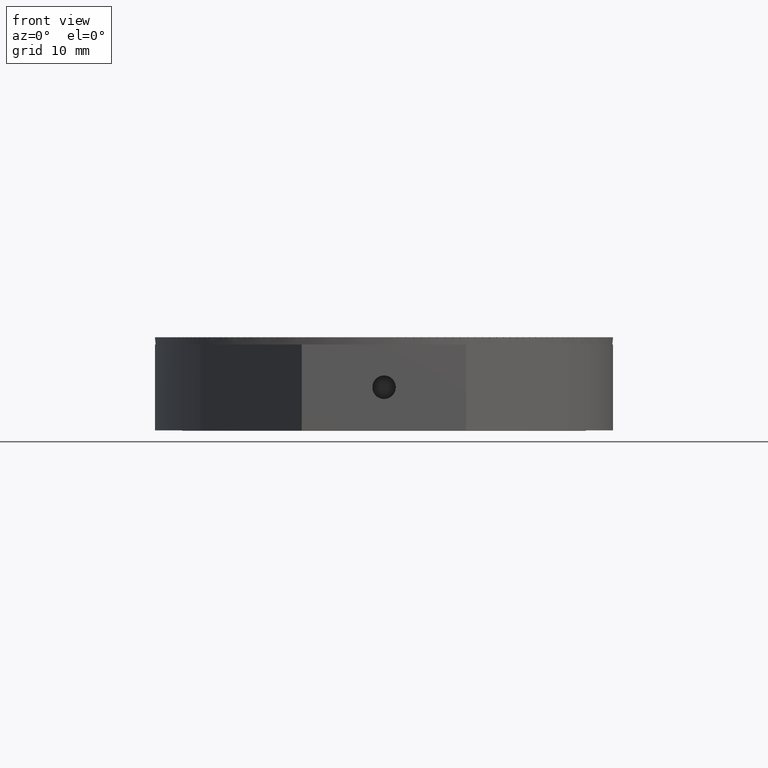
[diagram: clean part render]
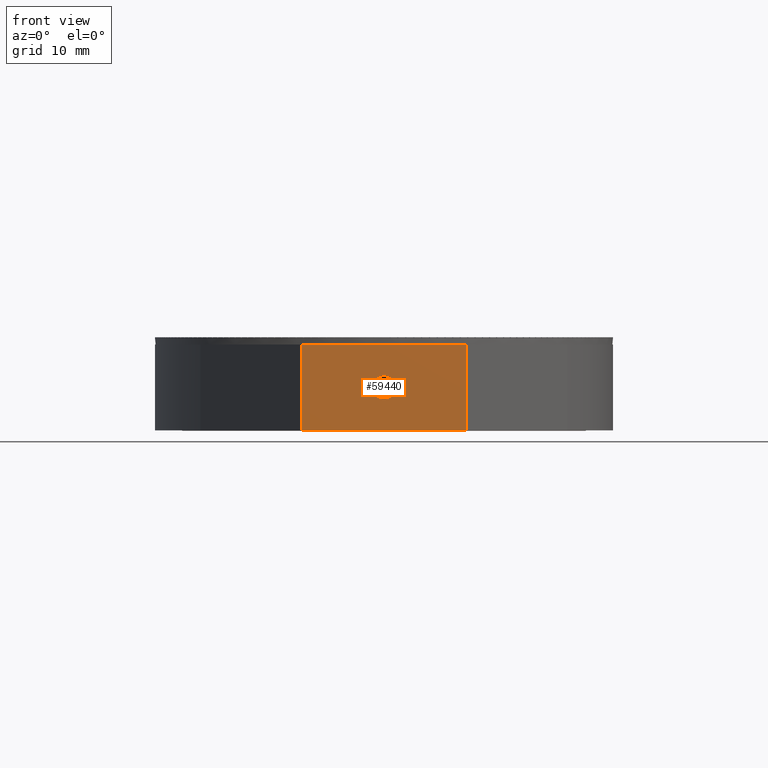
[diagram: same view with one face highlighted and labeled with its STEP entity id]
A machine part, front view. The second image highlights one B-rep face of the part: STEP entity #59440.
In plain terms, the highlighted planar face has unit normal (0, 1, -0).
Its self-contained STEP definition (entity closure, byte-faithful):
#1243 = AXIS2_PLACEMENT_3D ( 'NONE', #41484, #4223, #26434 ) ;
#3335 = ORIENTED_EDGE ( 'NONE', *, *, #45477, .F. ) ;
#4223 = DIRECTION ( 'NONE',  ( -0.000000000000000000, -0.000000000000000000, 1.000000000000000000 ) ) ;
#4951 = AXIS2_PLACEMENT_3D ( 'NONE', #42011, #50673, #16726 ) ;
#5352 = CIRCLE ( 'NONE', #1243, 1.649999999999989919 ) ;
#5496 = EDGE_CURVE ( 'NONE', #52175, #23324, #5352, .T. ) ;
#8869 = DIRECTION ( 'NONE',  ( 1.000000000000000000, 0.000000000000000000, 0.000000000000000000 ) ) ;
#10073 = EDGE_LOOP ( 'NONE', ( #32929, #32543, #10086, #21623 ) ) ;
#10086 = ORIENTED_EDGE ( 'NONE', *, *, #54423, .F. ) ;
#12300 = LINE ( 'NONE', #36968, #49907 ) ;
#12370 = CARTESIAN_POINT ( 'NONE',  ( -11.49999999999999467, 12.00000000000000000, 38.10000000000000142 ) ) ;
#14547 = CIRCLE ( 'NONE', #19680, 1.649999999999989919 ) ;
#16726 = DIRECTION ( 'NONE',  ( -1.000000000000000000, 0.000000000000000000, -0.000000000000000000 ) ) ;
#17356 = FACE_OUTER_BOUND ( 'NONE', #10073, .T. ) ;
#18507 = LINE ( 'NONE', #42847, #21087 ) ;
#19680 = AXIS2_PLACEMENT_3D ( 'NONE', #27220, #22115, #36852 ) ;
#21087 = VECTOR ( 'NONE', #31995, 1000.000000000000000 ) ;
#21623 = ORIENTED_EDGE ( 'NONE', *, *, #47508, .T. ) ;
#21640 = VERTEX_POINT ( 'NONE', #24162 ) ;
#22115 = DIRECTION ( 'NONE',  ( -0.000000000000000000, -0.000000000000000000, 1.000000000000000000 ) ) ;
#23285 = LINE ( 'NONE', #52736, #31771 ) ;
#23324 = VERTEX_POINT ( 'NONE', #44043 ) ;
#24162 = CARTESIAN_POINT ( 'NONE',  ( 11.50000000000000533, 12.00000000000000000, 38.10000000000000142 ) ) ;
#25090 = EDGE_CURVE ( 'NONE', #21640, #60846, #12300, .T. ) ;
#25762 = ORIENTED_EDGE ( 'NONE', *, *, #5496, .F. ) ;
#26326 = FACE_BOUND ( 'NONE', #54263, .T. ) ;
#26434 = DIRECTION ( 'NONE',  ( 1.000000000000000000, 0.000000000000000000, 0.000000000000000000 ) ) ;
#27220 = CARTESIAN_POINT ( 'NONE',  ( 0.000000000000000000, 6.000000000000000000, 38.10000000000000142 ) ) ;
#27356 = CARTESIAN_POINT ( 'NONE',  ( -11.49999999999999467, 12.00000000000000000, 38.10000000000000142 ) ) ;
#30163 = CARTESIAN_POINT ( 'NONE',  ( 11.50000000000000533, 0.000000000000000000, 38.10000000000000142 ) ) ;
#31771 = VECTOR ( 'NONE', #8869, 1000.000000000000000 ) ;
#31995 = DIRECTION ( 'NONE',  ( 1.000000000000000000, 0.000000000000000000, 0.000000000000000000 ) ) ;
#32543 = ORIENTED_EDGE ( 'NONE', *, *, #25090, .F. ) ;
#32929 = ORIENTED_EDGE ( 'NONE', *, *, #39924, .T. ) ;
#36790 = CARTESIAN_POINT ( 'NONE',  ( 1.649999999999989919, 6.000000000000000000, 38.10000000000000142 ) ) ;
#36852 = DIRECTION ( 'NONE',  ( 1.000000000000000000, 0.000000000000000000, 0.000000000000000000 ) ) ;
#36968 = CARTESIAN_POINT ( 'NONE',  ( 11.50000000000000533, 12.00000000000000000, 38.10000000000000142 ) ) ;
#37976 = VERTEX_POINT ( 'NONE', #12370 ) ;
#39924 = EDGE_CURVE ( 'NONE', #60611, #60846, #23285, .T. ) ;
#41484 = CARTESIAN_POINT ( 'NONE',  ( 0.000000000000000000, 6.000000000000000000, 38.10000000000000142 ) ) ;
#42011 = CARTESIAN_POINT ( 'NONE',  ( -11.49999999999999467, 12.00000000000000000, 38.10000000000000142 ) ) ;
#42690 = DIRECTION ( 'NONE',  ( -0.000000000000000000, -1.000000000000000000, -0.000000000000000000 ) ) ;
#42847 = CARTESIAN_POINT ( 'NONE',  ( -11.49999999999999467, 12.00000000000000000, 38.10000000000000142 ) ) ;
#44043 = CARTESIAN_POINT ( 'NONE',  ( -1.649999999999989919, 6.000000000000000000, 38.10000000000000142 ) ) ;
#45477 = EDGE_CURVE ( 'NONE', #23324, #52175, #14547, .T. ) ;
#46285 = DIRECTION ( 'NONE',  ( -0.000000000000000000, -1.000000000000000000, -0.000000000000000000 ) ) ;
#46505 = PLANE ( 'NONE',  #4951 ) ;
#47508 = EDGE_CURVE ( 'NONE', #37976, #60611, #56196, .T. ) ;
#49907 = VECTOR ( 'NONE', #42690, 1000.000000000000000 ) ;
#50673 = DIRECTION ( 'NONE',  ( 0.000000000000000000, 0.000000000000000000, -1.000000000000000000 ) ) ;
#52175 = VERTEX_POINT ( 'NONE', #36790 ) ;
#52736 = CARTESIAN_POINT ( 'NONE',  ( -11.49999999999999467, 0.000000000000000000, 38.10000000000000142 ) ) ;
#53492 = VECTOR ( 'NONE', #46285, 1000.000000000000000 ) ;
#54263 = EDGE_LOOP ( 'NONE', ( #25762, #3335 ) ) ;
#54423 = EDGE_CURVE ( 'NONE', #37976, #21640, #18507, .T. ) ;
#56196 = LINE ( 'NONE', #27356, #53492 ) ;
#56256 = CARTESIAN_POINT ( 'NONE',  ( -11.49999999999999467, 0.000000000000000000, 38.10000000000000142 ) ) ;
#59440 = ADVANCED_FACE ( 'NONE', ( #26326, #17356 ), #46505, .F. ) ;
#60611 = VERTEX_POINT ( 'NONE', #56256 ) ;
#60846 = VERTEX_POINT ( 'NONE', #30163 ) ;